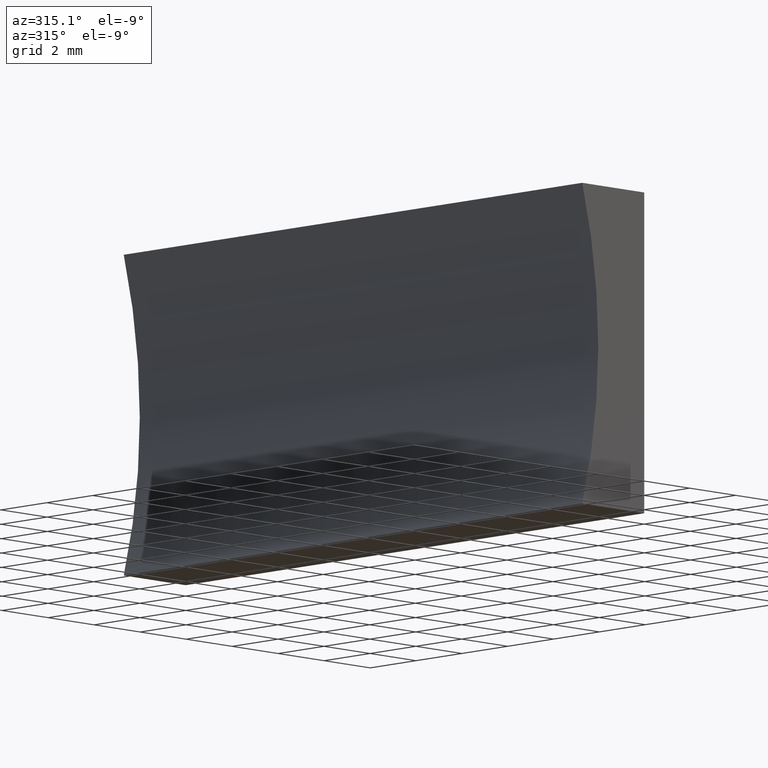
[diagram: clean part render]
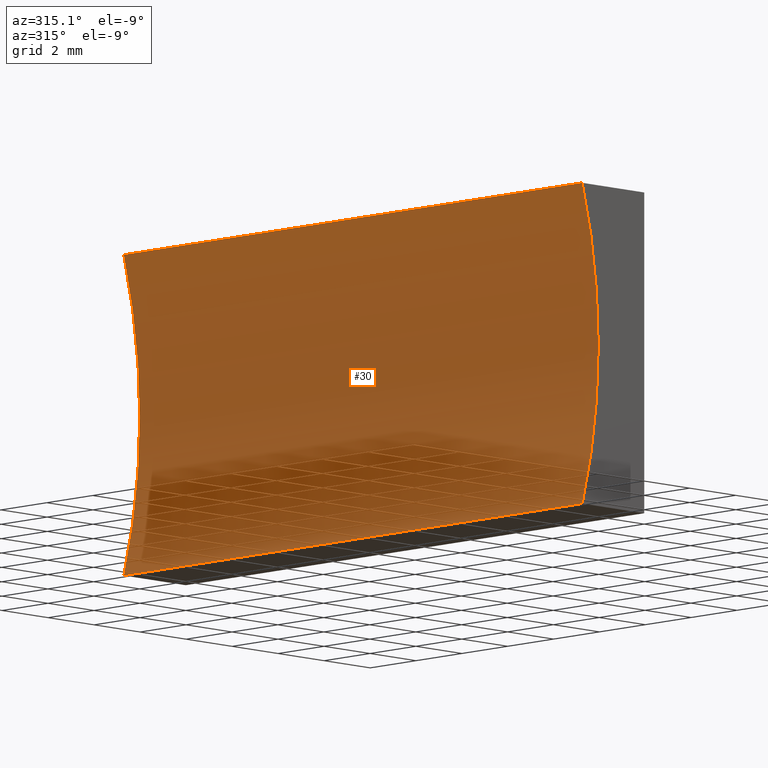
[diagram: same view with one face highlighted and labeled with its STEP entity id]
A machine part, auxiliary view. The second image highlights one B-rep face of the part: STEP entity #30.
In plain terms, the highlighted cylindrical surface (partial cylindrical patch) has radius 18.32 mm, axis along (-0, -1, -0).
Its self-contained STEP definition (entity closure, byte-faithful):
#3 = AXIS2_PLACEMENT_3D ( 'NONE', #53, #45, #144 ) ;
#14 = VERTEX_POINT ( 'NONE', #193 ) ;
#16 = EDGE_CURVE ( 'NONE', #32, #86, #95, .T. ) ;
#24 = DIRECTION ( 'NONE',  ( 0.0000000000000000000, 0.0000000000000000000, -1.000000000000000000 ) ) ;
#28 = EDGE_CURVE ( 'NONE', #46, #14, #98, .T. ) ;
#30 = ADVANCED_FACE ( 'NONE', ( #40 ), #93, .F. ) ;
#32 = VERTEX_POINT ( 'NONE', #101 ) ;
#33 = CARTESIAN_POINT ( 'NONE',  ( -2.695517028860106900, 20.00000000000000000, 1.734723475976807100E-015 ) ) ;
#37 = EDGE_CURVE ( 'NONE', #86, #14, #164, .T. ) ;
#40 = FACE_OUTER_BOUND ( 'NONE', #96, .T. ) ;
#45 = DIRECTION ( 'NONE',  ( -0.0000000000000000000, -1.000000000000000000, -0.0000000000000000000 ) ) ;
#46 = VERTEX_POINT ( 'NONE', #122 ) ;
#53 = CARTESIAN_POINT ( 'NONE',  ( -20.31999999999999700, 20.00000000000000000, 5.000000000000001800 ) ) ;
#63 = VECTOR ( 'NONE', #100, 1000.000000000000000 ) ;
#66 = CIRCLE ( 'NONE', #3, 18.32000000000000000 ) ;
#86 = VERTEX_POINT ( 'NONE', #115 ) ;
#93 = CYLINDRICAL_SURFACE ( 'NONE', #165, 18.32000000000000000 ) ;
#95 = LINE ( 'NONE', #33, #63 ) ;
#96 = EDGE_LOOP ( 'NONE', ( #123, #154, #142, #128 ) ) ;
#98 = LINE ( 'NONE', #108, #202 ) ;
#100 = DIRECTION ( 'NONE',  ( -0.0000000000000000000, -1.000000000000000000, -0.0000000000000000000 ) ) ;
#101 = CARTESIAN_POINT ( 'NONE',  ( -2.695517028860106900, 20.00000000000000000, 1.734723475976807100E-015 ) ) ;
#102 = AXIS2_PLACEMENT_3D ( 'NONE', #174, #153, #199 ) ;
#108 = CARTESIAN_POINT ( 'NONE',  ( -2.695517028860105600, 20.00000000000000000, 9.999999999999998200 ) ) ;
#115 = CARTESIAN_POINT ( 'NONE',  ( -2.695517028860106900, 0.0000000000000000000, 1.734723475976807100E-015 ) ) ;
#122 = CARTESIAN_POINT ( 'NONE',  ( -2.695517028860105600, 20.00000000000000000, 9.999999999999998200 ) ) ;
#123 = ORIENTED_EDGE ( 'NONE', *, *, #37, .T. ) ;
#128 = ORIENTED_EDGE ( 'NONE', *, *, #16, .T. ) ;
#132 = EDGE_CURVE ( 'NONE', #32, #46, #66, .T. ) ;
#142 = ORIENTED_EDGE ( 'NONE', *, *, #132, .F. ) ;
#144 = DIRECTION ( 'NONE',  ( 0.0000000000000000000, 0.0000000000000000000, 1.000000000000000000 ) ) ;
#153 = DIRECTION ( 'NONE',  ( -0.0000000000000000000, -1.000000000000000000, -0.0000000000000000000 ) ) ;
#154 = ORIENTED_EDGE ( 'NONE', *, *, #28, .F. ) ;
#162 = CARTESIAN_POINT ( 'NONE',  ( -20.31999999999999700, 20.00000000000000000, 5.000000000000001800 ) ) ;
#164 = CIRCLE ( 'NONE', #102, 18.32000000000000000 ) ;
#165 = AXIS2_PLACEMENT_3D ( 'NONE', #162, #168, #24 ) ;
#168 = DIRECTION ( 'NONE',  ( -0.0000000000000000000, -1.000000000000000000, -0.0000000000000000000 ) ) ;
#170 = DIRECTION ( 'NONE',  ( -0.0000000000000000000, -1.000000000000000000, -0.0000000000000000000 ) ) ;
#174 = CARTESIAN_POINT ( 'NONE',  ( -20.31999999999999700, 0.0000000000000000000, 5.000000000000001800 ) ) ;
#193 = CARTESIAN_POINT ( 'NONE',  ( -2.695517028860105600, 0.0000000000000000000, 9.999999999999998200 ) ) ;
#199 = DIRECTION ( 'NONE',  ( 0.0000000000000000000, 0.0000000000000000000, 1.000000000000000000 ) ) ;
#202 = VECTOR ( 'NONE', #170, 1000.000000000000000 ) ;